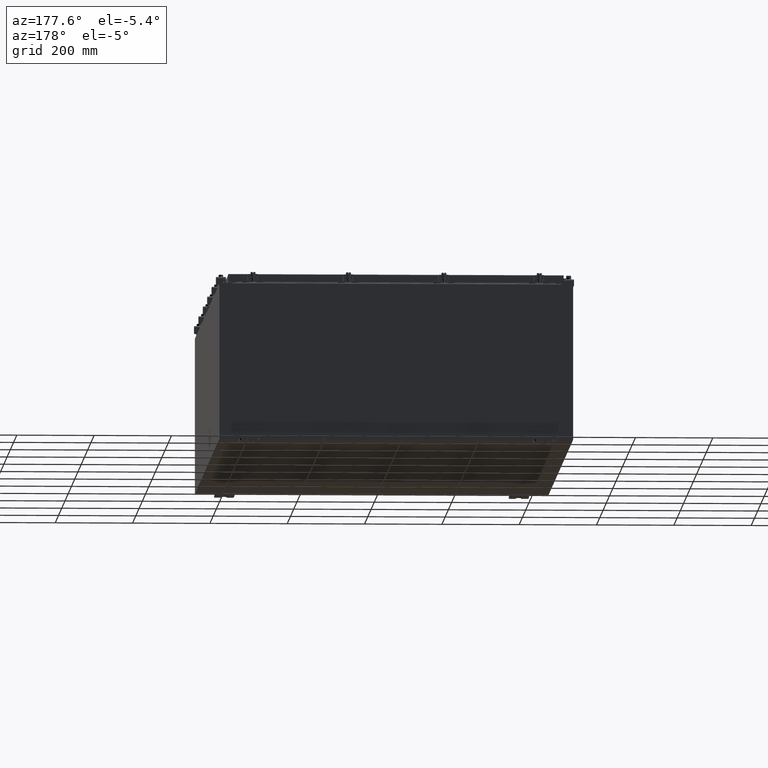
[diagram: clean part render]
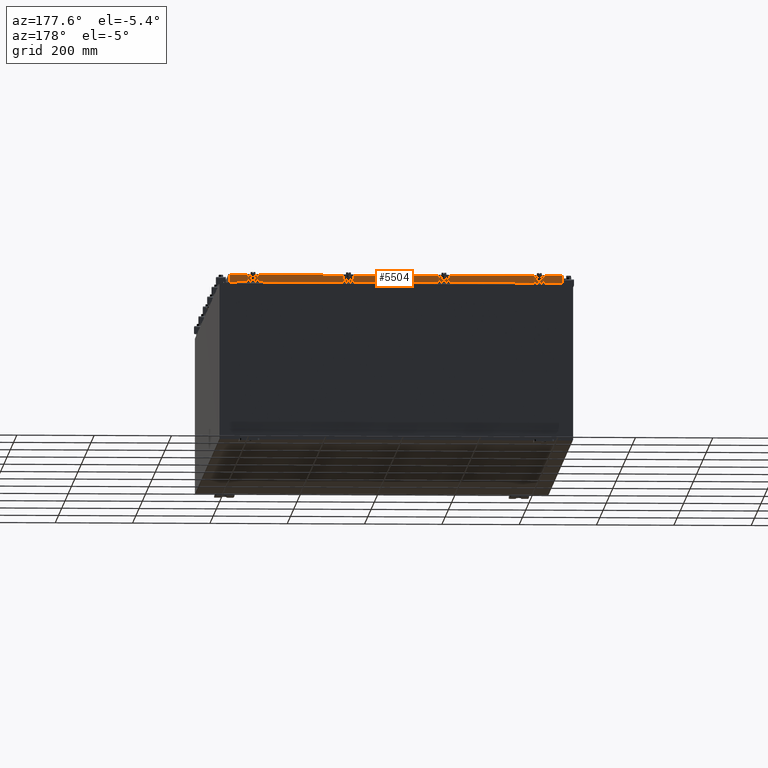
[diagram: same view with one face highlighted and labeled with its STEP entity id]
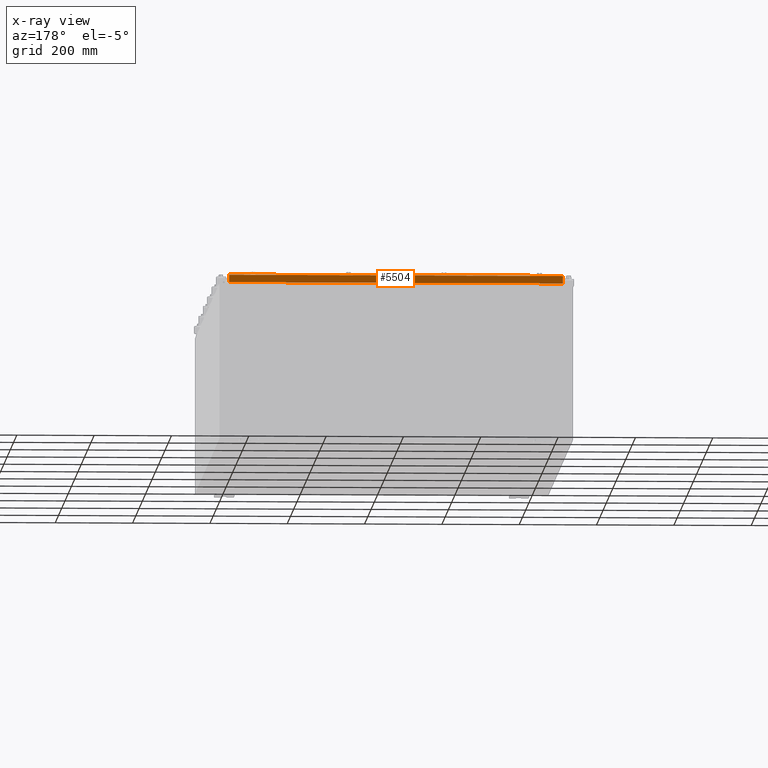
[diagram: x-ray of the same camera — body ghosted, the highlighted face saturated]
A machine part, auxiliary view. The second image highlights one B-rep face of the part: STEP entity #5504.
The next image is the same camera in x-ray: the body ghosted, the highlighted face saturated — about 0% of this face is hidden behind the body in this view.
In plain terms, the highlighted planar face has unit normal (0, -1, -0).
Its self-contained STEP definition (entity closure, byte-faithful):
#320 = VECTOR ( 'NONE', #20200, 39.37007874015748100 ) ;
#2452 = ORIENTED_EDGE ( 'NONE', *, *, #13016, .F. ) ;
#2482 = EDGE_CURVE ( 'NONE', #7690, #23615, #2725, .T. ) ;
#2569 = CARTESIAN_POINT ( 'NONE',  ( 16.98915786437627100, 29.09400000000000100, -0.08769999999999547600 ) ) ;
#2725 = LINE ( 'NONE', #8058, #7714 ) ;
#2920 = DIRECTION ( 'NONE',  ( -0.0000000000000000000, 5.637761885544689500E-015, -1.000000000000000000 ) ) ;
#2971 = LINE ( 'NONE', #13504, #13597 ) ;
#3314 = VERTEX_POINT ( 'NONE', #18861 ) ;
#4129 = EDGE_CURVE ( 'NONE', #3314, #7690, #10506, .T. ) ;
#4149 = FACE_OUTER_BOUND ( 'NONE', #16414, .T. ) ;
#5387 = ORIENTED_EDGE ( 'NONE', *, *, #19776, .T. ) ;
#5497 = DIRECTION ( 'NONE',  ( 0.0000000000000000000, 5.637761885544689500E-015, -1.000000000000000000 ) ) ;
#5504 = ADVANCED_FACE ( 'NONE', ( #4149 ), #16014, .F. ) ;
#7690 = VERTEX_POINT ( 'NONE', #21119 ) ;
#7714 = VECTOR ( 'NONE', #16567, 39.37007874015748100 ) ;
#8058 = CARTESIAN_POINT ( 'NONE',  ( -16.23915786437626400, 29.09400000000000100, -0.8500000000000037500 ) ) ;
#9192 = ORIENTED_EDGE ( 'NONE', *, *, #2482, .F. ) ;
#10506 = LINE ( 'NONE', #10623, #25514 ) ;
#10623 = CARTESIAN_POINT ( 'NONE',  ( -17.07799999999999600, 29.09400000000000500, -0.8500000000000038600 ) ) ;
#10624 = CARTESIAN_POINT ( 'NONE',  ( 16.98915786437627100, 29.09400000000000100, 1.642858579540487400E-013 ) ) ;
#11489 = CARTESIAN_POINT ( 'NONE',  ( -16.98915786437626400, 29.09400000000000100, -0.08769999999999549000 ) ) ;
#12758 = DIRECTION ( 'NONE',  ( 1.000000000000000000, -0.0000000000000000000, 1.239713195391617400E-016 ) ) ;
#13016 = EDGE_CURVE ( 'NONE', #21385, #26357, #24755, .T. ) ;
#13259 = CARTESIAN_POINT ( 'NONE',  ( -17.07799999999999600, 29.09400000000000100, -0.08769999999999547600 ) ) ;
#13504 = CARTESIAN_POINT ( 'NONE',  ( -16.98915786437626400, 29.09400000000000100, -0.07469999999999958600 ) ) ;
#13538 = LINE ( 'NONE', #10624, #18607 ) ;
#13597 = VECTOR ( 'NONE', #2920, 39.37007874015748100 ) ;
#14505 = CARTESIAN_POINT ( 'NONE',  ( 16.98915786437627100, 29.09400000000000500, -0.8499999999999996400 ) ) ;
#14790 = VERTEX_POINT ( 'NONE', #14505 ) ;
#16014 = PLANE ( 'NONE',  #19395 ) ;
#16414 = EDGE_LOOP ( 'NONE', ( #2452, #5387, #26271, #9192, #18761, #17938 ) ) ;
#16567 = DIRECTION ( 'NONE',  ( 1.000000000000000000, -0.0000000000000000000, -0.0000000000000000000 ) ) ;
#17322 = LINE ( 'NONE', #24492, #320 ) ;
#17938 = ORIENTED_EDGE ( 'NONE', *, *, #24428, .F. ) ;
#18256 = EDGE_CURVE ( 'NONE', #23615, #14790, #17322, .T. ) ;
#18280 = DIRECTION ( 'NONE',  ( 6.989207801985676400E-031, -1.000000000000000000, -5.637761885544689500E-015 ) ) ;
#18527 = CARTESIAN_POINT ( 'NONE',  ( 16.23915786437627100, 29.09400000000000100, -0.8500000000000037500 ) ) ;
#18607 = VECTOR ( 'NONE', #23404, 39.37007874015748100 ) ;
#18761 = ORIENTED_EDGE ( 'NONE', *, *, #4129, .F. ) ;
#18861 = CARTESIAN_POINT ( 'NONE',  ( -16.98915786437626400, 29.09400000000000500, -0.8500000000000038600 ) ) ;
#19078 = VECTOR ( 'NONE', #24012, 39.37007874015748100 ) ;
#19395 = AXIS2_PLACEMENT_3D ( 'NONE', #24603, #18280, #5497 ) ;
#19776 = EDGE_CURVE ( 'NONE', #21385, #14790, #13538, .T. ) ;
#20200 = DIRECTION ( 'NONE',  ( 1.000000000000000000, -0.0000000000000000000, 1.239713195391617400E-016 ) ) ;
#21119 = CARTESIAN_POINT ( 'NONE',  ( -16.23915786437625600, 29.09400000000000100, -0.8500000000000037500 ) ) ;
#21385 = VERTEX_POINT ( 'NONE', #2569 ) ;
#23404 = DIRECTION ( 'NONE',  ( 0.0000000000000000000, 5.637761885544689500E-015, -1.000000000000000000 ) ) ;
#23615 = VERTEX_POINT ( 'NONE', #18527 ) ;
#24012 = DIRECTION ( 'NONE',  ( -1.000000000000000000, -6.989207801985677300E-031, -3.922586267643528000E-045 ) ) ;
#24428 = EDGE_CURVE ( 'NONE', #26357, #3314, #2971, .T. ) ;
#24492 = CARTESIAN_POINT ( 'NONE',  ( -17.07799999999999600, 29.09400000000000500, -0.8500000000000038600 ) ) ;
#24603 = CARTESIAN_POINT ( 'NONE',  ( -2.033440117909712900E-029, 29.09400000000000100, 1.642858579540487400E-013 ) ) ;
#24755 = LINE ( 'NONE', #13259, #19078 ) ;
#25514 = VECTOR ( 'NONE', #12758, 39.37007874015748100 ) ;
#26271 = ORIENTED_EDGE ( 'NONE', *, *, #18256, .F. ) ;
#26357 = VERTEX_POINT ( 'NONE', #11489 ) ;